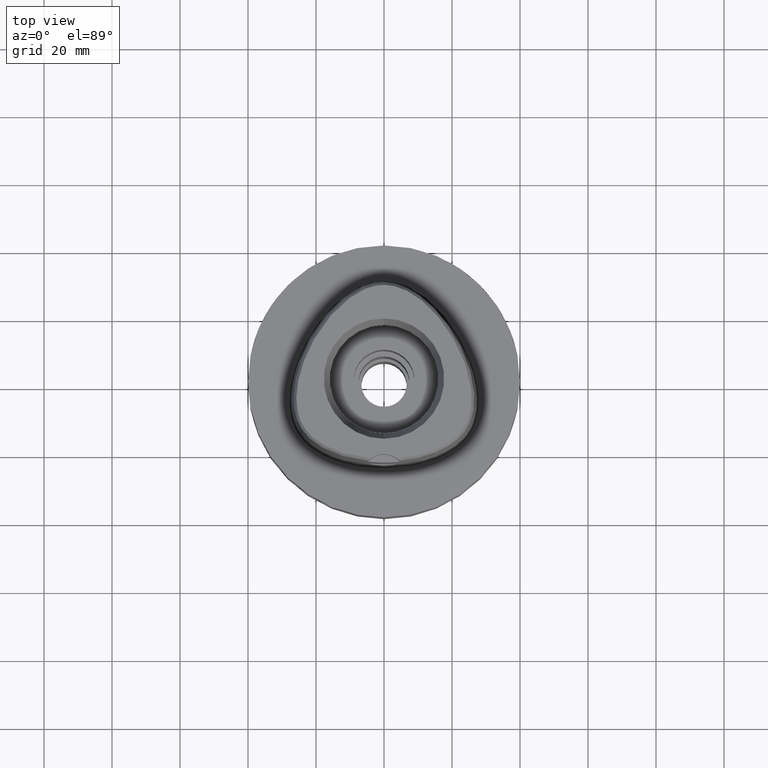
[diagram: clean part render]
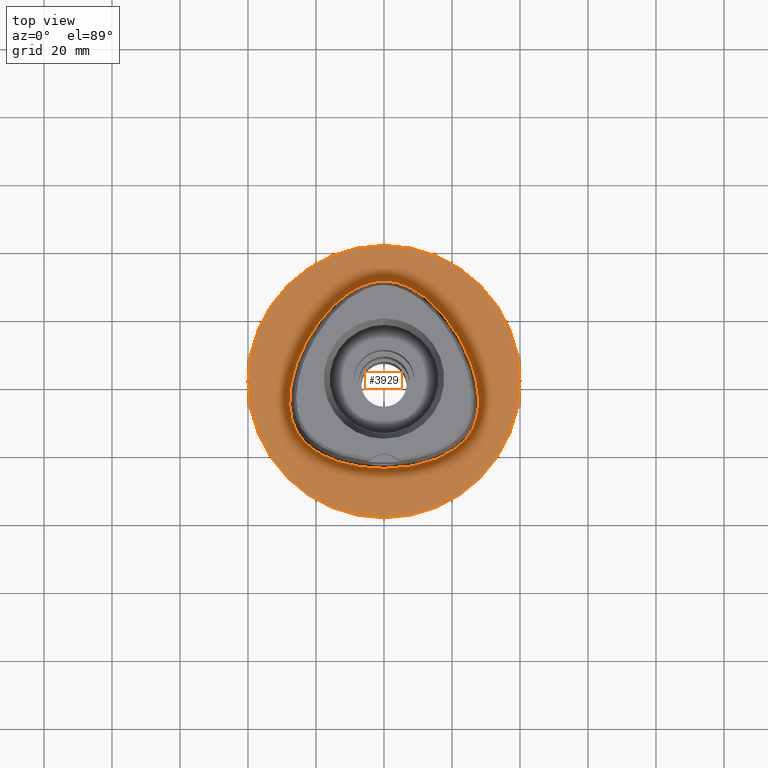
[diagram: same view with one face highlighted and labeled with its STEP entity id]
A machine part, top view. The second image highlights one B-rep face of the part: STEP entity #3929.
In plain terms, the highlighted planar face has unit normal (0, 0, -1).
Its self-contained STEP definition (entity closure, byte-faithful):
#44 = CARTESIAN_POINT ( 'NONE',  ( 0.0000000000000000000, -40.00000000000000000, 0.0000000000000000000 ) ) ;
#75 = CARTESIAN_POINT ( 'NONE',  ( -27.85475984569001184, -5.337968751298188153, 2.064396934756303204E-06 ) ) ;
#100 = EDGE_CURVE ( 'NONE', #1764, #5011, #381, .T. ) ;
#106 = FACE_OUTER_BOUND ( 'NONE', #5110, .T. ) ;
#152 = CARTESIAN_POINT ( 'NONE',  ( 24.77458489239828410, -16.12173824997035965, 2.108137811399676126E-06 ) ) ;
#153 = CARTESIAN_POINT ( 'NONE',  ( 0.0000000000000000000, 1.224646799146999965E-14, 0.0000000000000000000 ) ) ;
#171 = CARTESIAN_POINT ( 'NONE',  ( 22.33885461184750554, 12.89734372353510317, 2.108137811399676126E-06 ) ) ;
#381 = B_SPLINE_CURVE_WITH_KNOTS ( 'NONE', 3,
 ( #2103, #4175, #2983, #565, #539, #1327, #2908, #933, #152, #1740, #2158, #3746, #3331, #5000, #1421, #3007, #2504, #171, #4103, #4948, #1375, #1143, #2646, #5133, #5081 ),
 .UNSPECIFIED., .F., .F.,
 ( 4, 1, 1, 1, 1, 1, 1, 1, 1, 1, 1, 1, 1, 1, 1, 1, 1, 1, 1, 1, 1, 1, 4 ),
 ( 0.0000000000000000000, 0.08333333333342000937, 0.1250000000001000033, 0.1666666666667000196, 0.2083333333333000081, 0.2500000000000000000, 0.2916666666666999919, 0.3125000000000000000, 0.3333333333332000326, 0.3541666666666000163, 0.3749999999998999689, 0.4166666666666000163, 0.4583333333332000326, 0.4999999999998999689, 0.5416666666664999852, 0.5833333333331000015, 0.6666666666664999852, 0.7499999999997000177, 0.8333333333329999704, 0.8749999999995999866, 0.9166666666663000340, 0.9583333333329000503, 1.000000000000000000 ),
 .UNSPECIFIED. ) ;
#386 = CARTESIAN_POINT ( 'NONE',  ( -6.691850456731473606, -25.24546869871049282, 2.064396934756303204E-06 ) ) ;
#413 = CARTESIAN_POINT ( 'NONE',  ( -26.77222809274429594, 1.900468736734375108, 2.064396934756303204E-06 ) ) ;
#539 = CARTESIAN_POINT ( 'NONE',  ( 15.29776364365714691, -22.96525385704416422, 2.108137811399676126E-06 ) ) ;
#565 = CARTESIAN_POINT ( 'NONE',  ( 11.74025984097742636, -24.13566401154927021, 2.108137811399676126E-06 ) ) ;
#567 = DIRECTION ( 'NONE',  ( 0.0000000000000000000, 0.0000000000000000000, -1.000000000000000000 ) ) ;
#638 = CARTESIAN_POINT ( 'NONE',  ( -1.338855233590000012E-11, -25.57499999999999929, 7.449596495234999810E-14 ) ) ;
#765 = EDGE_CURVE ( 'NONE', #4623, #4808, #4816, .T. ) ;
#773 = CARTESIAN_POINT ( 'NONE',  ( -27.10051712387568656, -11.41106443894279643, 2.064396934756303204E-06 ) ) ;
#802 = CARTESIAN_POINT ( 'NONE',  ( -17.75297947164666823, 19.52218746704799912, 2.064396934756303204E-06 ) ) ;
#888 = CARTESIAN_POINT ( 'NONE',  ( 0.0000000000000000000, 1.302718032592999872E-14, 0.0000000000000000000 ) ) ;
#933 = CARTESIAN_POINT ( 'NONE',  ( 23.43253024949552099, -17.76420406475199343, 2.108137811399676126E-06 ) ) ;
#934 = CARTESIAN_POINT ( 'NONE',  ( -13.21796077135462433, 24.04386714839906247, 2.064396934756303204E-06 ) ) ;
#944 = ORIENTED_EDGE ( 'NONE', *, *, #765, .F. ) ;
#1143 = CARTESIAN_POINT ( 'NONE',  ( 6.262496924295282597, 28.35083002931301266, 2.108137811399676126E-06 ) ) ;
#1272 = CARTESIAN_POINT ( 'NONE',  ( -15.29776364405438649, -22.96525385806549124, 2.064396934756303204E-06 ) ) ;
#1279 = FACE_BOUND ( 'NONE', #3496, .T. ) ;
#1310 = DIRECTION ( 'NONE',  ( 0.0000000000000000000, 0.0000000000000000000, -1.000000000000000000 ) ) ;
#1327 = CARTESIAN_POINT ( 'NONE',  ( 18.55019646555187052, -21.45394526607280383, 2.108137811399676126E-06 ) ) ;
#1328 = CARTESIAN_POINT ( 'NONE',  ( -1.049694954310435691, 29.57499994839313828, 2.064396934756303204E-06 ) ) ;
#1330 = DIRECTION ( 'NONE',  ( 0.0000000000000000000, -1.000000000000000000, 0.0000000000000000000 ) ) ;
#1375 = CARTESIAN_POINT ( 'NONE',  ( 9.304563379039132442, 26.79191401739475253, 2.108137811399676126E-06 ) ) ;
#1421 = CARTESIAN_POINT ( 'NONE',  ( 27.53737506638222499, -1.765625007974727767, 2.108137811399676126E-06 ) ) ;
#1509 = ORIENTED_EDGE ( 'NONE', *, *, #3889, .F. ) ;
#1558 = CARTESIAN_POINT ( 'NONE',  ( -23.43253025028252878, -17.76420406550706943, 2.064396934756303204E-06 ) ) ;
#1619 = EDGE_CURVE ( 'NONE', #5011, #1764, #4234, .T. ) ;
#1690 = PLANE ( 'NONE',  #2408 ) ;
#1722 = DIRECTION ( 'NONE',  ( 0.0000000000000000000, 1.000000000000000000, 0.0000000000000000000 ) ) ;
#1740 = CARTESIAN_POINT ( 'NONE',  ( 25.63812385286340501, -14.80217770797236376, 2.108137811399676126E-06 ) ) ;
#1741 = DIRECTION ( 'NONE',  ( 0.0000000000000000000, -1.000000000000000000, 0.0000000000000000000 ) ) ;
#1764 = VERTEX_POINT ( 'NONE', #638 ) ;
#2016 = CARTESIAN_POINT ( 'NONE',  ( -27.53737506747078356, -1.765625007808196312, 2.064396934756303204E-06 ) ) ;
#2044 = CARTESIAN_POINT ( 'NONE',  ( -11.74025984127083255, -24.13566401260467842, 2.064396934756303204E-06 ) ) ;
#2103 = CARTESIAN_POINT ( 'NONE',  ( -1.338855233590000012E-11, -25.57499999999999929, 7.449596495234999810E-14 ) ) ;
#2158 = CARTESIAN_POINT ( 'NONE',  ( 26.34912732384307787, -13.39455076004319167, 2.108137811399676126E-06 ) ) ;
#2374 = CARTESIAN_POINT ( 'NONE',  ( -26.34912732483848430, -13.39455076047916648, 2.064396934756303204E-06 ) ) ;
#2393 = AXIS2_PLACEMENT_3D ( 'NONE', #4905, #567, #1330 ) ;
#2408 = AXIS2_PLACEMENT_3D ( 'NONE', #153, #4925, #1741 ) ;
#2425 = CARTESIAN_POINT ( 'NONE',  ( -25.63812385380850856, -14.80217770851811387, 2.064396934756303204E-06 ) ) ;
#2440 = ORIENTED_EDGE ( 'NONE', *, *, #100, .F. ) ;
#2473 = CIRCLE ( 'NONE', #2393, 40.00000000000000000 ) ;
#2504 = CARTESIAN_POINT ( 'NONE',  ( 25.20914245089041827, 6.827421855086727831, 2.108137811399676126E-06 ) ) ;
#2527 = CARTESIAN_POINT ( 'NONE',  ( 3.426444783280999804E-11, 29.57499999998999840, 6.813068627782999373E-14 ) ) ;
#2603 = CARTESIAN_POINT ( 'NONE',  ( -24.77458489328232716, -16.12173825062845722, 2.064396934756303204E-06 ) ) ;
#2646 = CARTESIAN_POINT ( 'NONE',  ( 3.149084863127339151, 29.34015619820115717, 2.108137811399676126E-06 ) ) ;
#2749 = CARTESIAN_POINT ( 'NONE',  ( -25.20914245190754244, 6.827421855500653614, 2.064396934756303204E-06 ) ) ;
#2766 = CARTESIAN_POINT ( 'NONE',  ( 3.426444783280999804E-11, 29.57499999998999840, 6.813068627782999373E-14 ) ) ;
#2908 = CARTESIAN_POINT ( 'NONE',  ( 21.42129056161597589, -19.59889644221498628, 2.108137811399676126E-06 ) ) ;
#2909 = CARTESIAN_POINT ( 'NONE',  ( -6.262496924720455382, 28.35083003032672977, 2.064396934756303204E-06 ) ) ;
#2983 = CARTESIAN_POINT ( 'NONE',  ( 6.691850456580863415, -25.24546869763810264, 2.108137811399676126E-06 ) ) ;
#3007 = CARTESIAN_POINT ( 'NONE',  ( 26.77222809168815587, 1.900468736453224894, 2.108137811399676126E-06 ) ) ;
#3152 = CARTESIAN_POINT ( 'NONE',  ( -2.676740182717447958, -25.57499994838956781, 2.064396934756303204E-06 ) ) ;
#3203 = CARTESIAN_POINT ( 'NONE',  ( -27.68378748699597836, -8.751933587236274903, 2.064396934756303204E-06 ) ) ;
#3331 = CARTESIAN_POINT ( 'NONE',  ( 27.68378748591101868, -8.751933587098946532, 2.108137811399676126E-06 ) ) ;
#3496 = EDGE_LOOP ( 'NONE', ( #4110, #2440 ) ) ;
#3593 = CARTESIAN_POINT ( 'NONE',  ( -1.338855233590000012E-11, -25.57499999999999929, 7.449596495234999810E-14 ) ) ;
#3746 = CARTESIAN_POINT ( 'NONE',  ( 27.10051712282193748, -11.41106443863582953, 2.108137811399676126E-06 ) ) ;
#3889 = EDGE_CURVE ( 'NONE', #4808, #4623, #2473, .T. ) ;
#3929 = ADVANCED_FACE ( 'NONE', ( #106, #1279 ), #1690, .F. ) ;
#4016 = CARTESIAN_POINT ( 'NONE',  ( -22.33885461279461992, 12.89734372409089502, 2.064396934756303204E-06 ) ) ;
#4103 = CARTESIAN_POINT ( 'NONE',  ( 17.75297947079427274, 19.52218746634406088, 2.108137811399676126E-06 ) ) ;
#4110 = ORIENTED_EDGE ( 'NONE', *, *, #1619, .F. ) ;
#4129 = CARTESIAN_POINT ( 'NONE',  ( -9.304563379611725082, 26.79191401832796515, 2.064396934756303204E-06 ) ) ;
#4175 = CARTESIAN_POINT ( 'NONE',  ( 2.676740182642352028, -25.57499994730424575, 2.108137811399676126E-06 ) ) ;
#4234 = B_SPLINE_CURVE_WITH_KNOTS ( 'NONE', 3,
 ( #2527, #1328, #4514, #2909, #4129, #934, #802, #4016, #2749, #413, #2016, #75, #3203, #773, #2374, #2425, #2603, #1558, #4432, #4359, #1272, #2044, #386, #3152, #3593 ),
 .UNSPECIFIED., .F., .F.,
 ( 4, 1, 1, 1, 1, 1, 1, 1, 1, 1, 1, 1, 1, 1, 1, 1, 1, 1, 1, 1, 1, 1, 4 ),
 ( 0.0000000000000000000, 0.04166666666708999933, 0.08333333333372000551, 0.1250000000004000134, 0.1666666666670000019, 0.2500000000002999823, 0.3333333333335000148, 0.4166666666668999985, 0.4583333333333999837, 0.5000000000001000311, 0.5416666666667999674, 0.5833333333333000637, 0.6250000000000000000, 0.6458333333333000637, 0.6666666666667000474, 0.6875000000000000000, 0.7083333333332000326, 0.7499999999999000799, 0.7916666666666000163, 0.8333333333331000015, 0.8749999999998000488, 0.9166666666664999852, 1.000000000000000000 ),
 .UNSPECIFIED. ) ;
#4359 = CARTESIAN_POINT ( 'NONE',  ( -18.55019646607535933, -21.45394526703120874, 2.064396934756303204E-06 ) ) ;
#4432 = CARTESIAN_POINT ( 'NONE',  ( -21.42129056227846462, -19.59889644309166812, 2.064396934756303204E-06 ) ) ;
#4514 = CARTESIAN_POINT ( 'NONE',  ( -3.149084863364135067, 29.34015619927245311, 2.064396934756303204E-06 ) ) ;
#4567 = AXIS2_PLACEMENT_3D ( 'NONE', #888, #1310, #1722 ) ;
#4569 = CARTESIAN_POINT ( 'NONE',  ( 0.0000000000000000000, 40.00000000000000000, 0.0000000000000000000 ) ) ;
#4623 = VERTEX_POINT ( 'NONE', #4569 ) ;
#4808 = VERTEX_POINT ( 'NONE', #44 ) ;
#4816 = CIRCLE ( 'NONE', #4567, 40.00000000000000000 ) ;
#4905 = CARTESIAN_POINT ( 'NONE',  ( 0.0000000000000000000, 1.302718032592999872E-14, 0.0000000000000000000 ) ) ;
#4925 = DIRECTION ( 'NONE',  ( 0.0000000000000000000, 0.0000000000000000000, -1.000000000000000000 ) ) ;
#4948 = CARTESIAN_POINT ( 'NONE',  ( 13.21796077063754993, 24.04386714755563048, 2.108137811399676126E-06 ) ) ;
#5000 = CARTESIAN_POINT ( 'NONE',  ( 27.85475984459827359, -5.337968751325500527, 2.108137811399676126E-06 ) ) ;
#5011 = VERTEX_POINT ( 'NONE', #2766 ) ;
#5081 = CARTESIAN_POINT ( 'NONE',  ( 3.426444783280999804E-11, 29.57499999998999840, 6.813068627782999373E-14 ) ) ;
#5110 = EDGE_LOOP ( 'NONE', ( #944, #1509 ) ) ;
#5133 = CARTESIAN_POINT ( 'NONE',  ( 1.049694954234580591, 29.57499994729563397, 2.108137811399676126E-06 ) ) ;